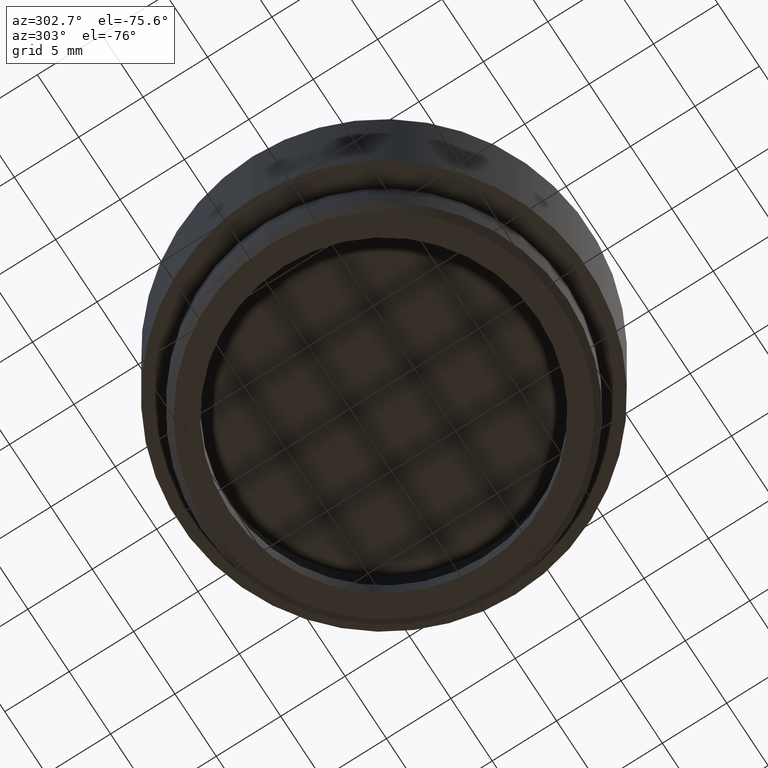
[diagram: clean part render]
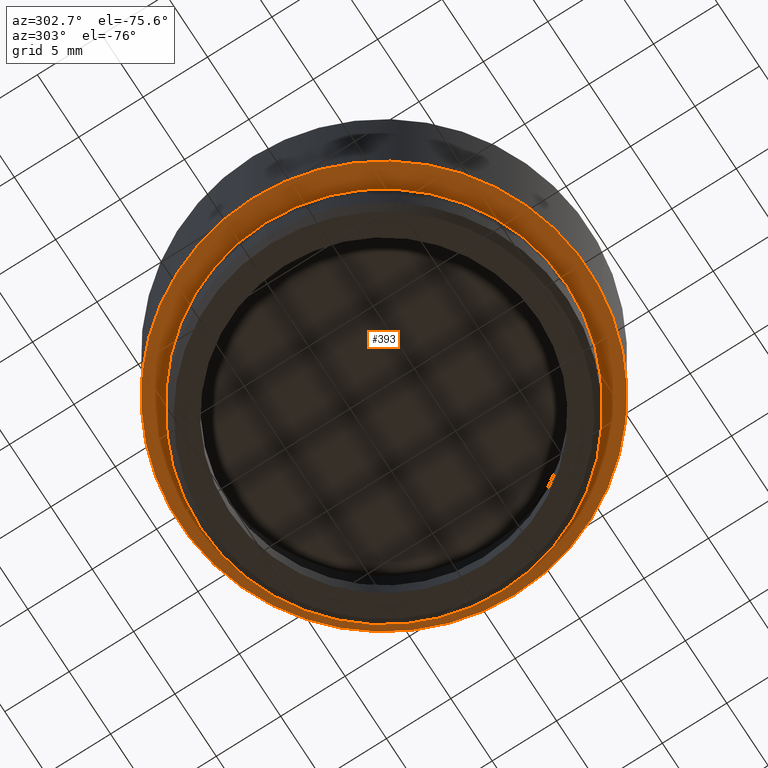
[diagram: same view with one face highlighted and labeled with its STEP entity id]
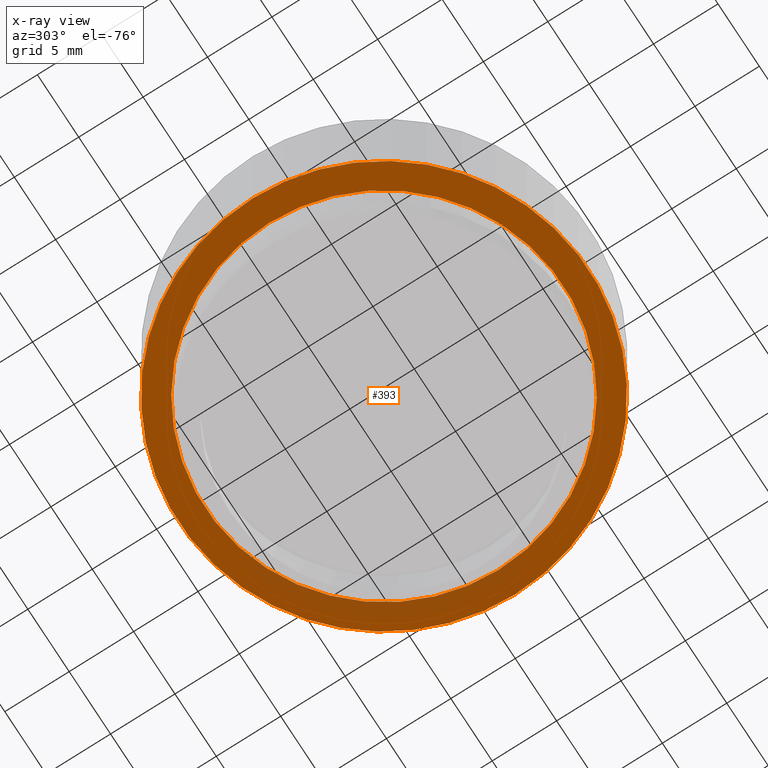
[diagram: x-ray of the same camera — body ghosted, the highlighted face saturated]
A machine part, auxiliary view. The second image highlights one B-rep face of the part: STEP entity #393.
The next image is the same camera in x-ray: the body ghosted, the highlighted face saturated — about 11% of this face is hidden behind the body in this view.
In plain terms, the highlighted planar face has unit normal (0, 0, -1).
Its self-contained STEP definition (entity closure, byte-faithful):
#42 = CARTESIAN_POINT ( 'NONE',  ( -13.90000000000000036, 1.702259050814821084E-15, 5.000000000000000000 ) ) ;
#159 = FACE_BOUND ( 'NONE', #1085, .T. ) ;
#173 = DIRECTION ( 'NONE',  ( -1.000000000000000000, 0.000000000000000000, 0.000000000000000000 ) ) ;
#179 = AXIS2_PLACEMENT_3D ( 'NONE', #1106, #587, #1637 ) ;
#195 = ORIENTED_EDGE ( 'NONE', *, *, #1473, .T. ) ;
#230 = CIRCLE ( 'NONE', #451, 13.90000000000000036 ) ;
#264 = PLANE ( 'NONE',  #796 ) ;
#267 = CARTESIAN_POINT ( 'NONE',  ( 0.000000000000000000, 0.000000000000000000, 5.000000000000000000 ) ) ;
#339 = EDGE_CURVE ( 'NONE', #1449, #550, #1212, .T. ) ;
#388 = DIRECTION ( 'NONE',  ( -1.000000000000000000, 0.000000000000000000, 0.000000000000000000 ) ) ;
#393 = ADVANCED_FACE ( 'NONE', ( #1104, #159 ), #264, .T. ) ;
#451 = AXIS2_PLACEMENT_3D ( 'NONE', #1626, #828, #173 ) ;
#523 = DIRECTION ( 'NONE',  ( 0.000000000000000000, 0.000000000000000000, -1.000000000000000000 ) ) ;
#531 = CARTESIAN_POINT ( 'NONE',  ( -15.87800000000000011, 0.000000000000000000, 5.000000000000000000 ) ) ;
#550 = VERTEX_POINT ( 'NONE', #731 ) ;
#552 = DIRECTION ( 'NONE',  ( -1.000000000000000000, 0.000000000000000000, -0.000000000000000000 ) ) ;
#587 = DIRECTION ( 'NONE',  ( 0.000000000000000000, 0.000000000000000000, -1.000000000000000000 ) ) ;
#607 = ORIENTED_EDGE ( 'NONE', *, *, #921, .T. ) ;
#608 = ORIENTED_EDGE ( 'NONE', *, *, #339, .F. ) ;
#651 = CARTESIAN_POINT ( 'NONE',  ( 15.87800000000000011, 1.944494187686167431E-15, 5.000000000000000000 ) ) ;
#731 = CARTESIAN_POINT ( 'NONE',  ( 13.90000000000000036, 0.000000000000000000, 5.000000000000000000 ) ) ;
#752 = AXIS2_PLACEMENT_3D ( 'NONE', #267, #939, #1617 ) ;
#796 = AXIS2_PLACEMENT_3D ( 'NONE', #935, #1596, #552 ) ;
#828 = DIRECTION ( 'NONE',  ( 0.000000000000000000, 0.000000000000000000, -1.000000000000000000 ) ) ;
#909 = ORIENTED_EDGE ( 'NONE', *, *, #1308, .F. ) ;
#921 = EDGE_CURVE ( 'NONE', #1698, #1089, #1578, .T. ) ;
#935 = CARTESIAN_POINT ( 'NONE',  ( 0.000000000000000000, 0.000000000000000000, 5.000000000000000000 ) ) ;
#939 = DIRECTION ( 'NONE',  ( 0.000000000000000000, 0.000000000000000000, -1.000000000000000000 ) ) ;
#1085 = EDGE_LOOP ( 'NONE', ( #909, #608 ) ) ;
#1089 = VERTEX_POINT ( 'NONE', #651 ) ;
#1101 = CIRCLE ( 'NONE', #179, 15.87800000000000011 ) ;
#1104 = FACE_OUTER_BOUND ( 'NONE', #1322, .T. ) ;
#1106 = CARTESIAN_POINT ( 'NONE',  ( 0.000000000000000000, 0.000000000000000000, 5.000000000000000000 ) ) ;
#1212 = CIRCLE ( 'NONE', #1427, 13.90000000000000036 ) ;
#1308 = EDGE_CURVE ( 'NONE', #550, #1449, #230, .T. ) ;
#1322 = EDGE_LOOP ( 'NONE', ( #607, #195 ) ) ;
#1332 = CARTESIAN_POINT ( 'NONE',  ( 0.000000000000000000, 0.000000000000000000, 5.000000000000000000 ) ) ;
#1427 = AXIS2_PLACEMENT_3D ( 'NONE', #1332, #523, #388 ) ;
#1449 = VERTEX_POINT ( 'NONE', #42 ) ;
#1473 = EDGE_CURVE ( 'NONE', #1089, #1698, #1101, .T. ) ;
#1578 = CIRCLE ( 'NONE', #752, 15.87800000000000011 ) ;
#1596 = DIRECTION ( 'NONE',  ( 0.000000000000000000, 0.000000000000000000, -1.000000000000000000 ) ) ;
#1617 = DIRECTION ( 'NONE',  ( -1.000000000000000000, 0.000000000000000000, 0.000000000000000000 ) ) ;
#1626 = CARTESIAN_POINT ( 'NONE',  ( 0.000000000000000000, 0.000000000000000000, 5.000000000000000000 ) ) ;
#1637 = DIRECTION ( 'NONE',  ( -1.000000000000000000, 0.000000000000000000, 0.000000000000000000 ) ) ;
#1698 = VERTEX_POINT ( 'NONE', #531 ) ;